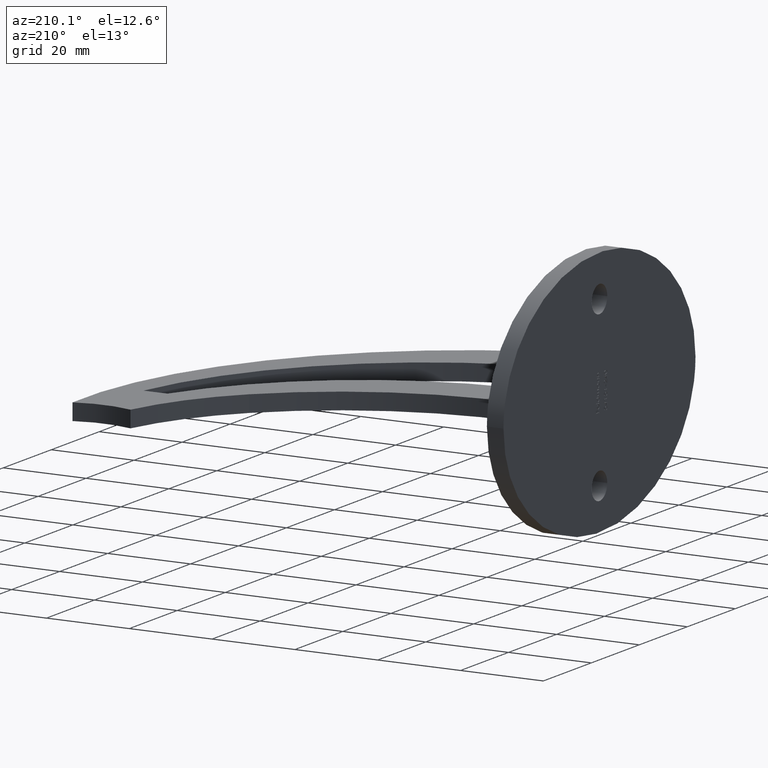
[diagram: clean part render]
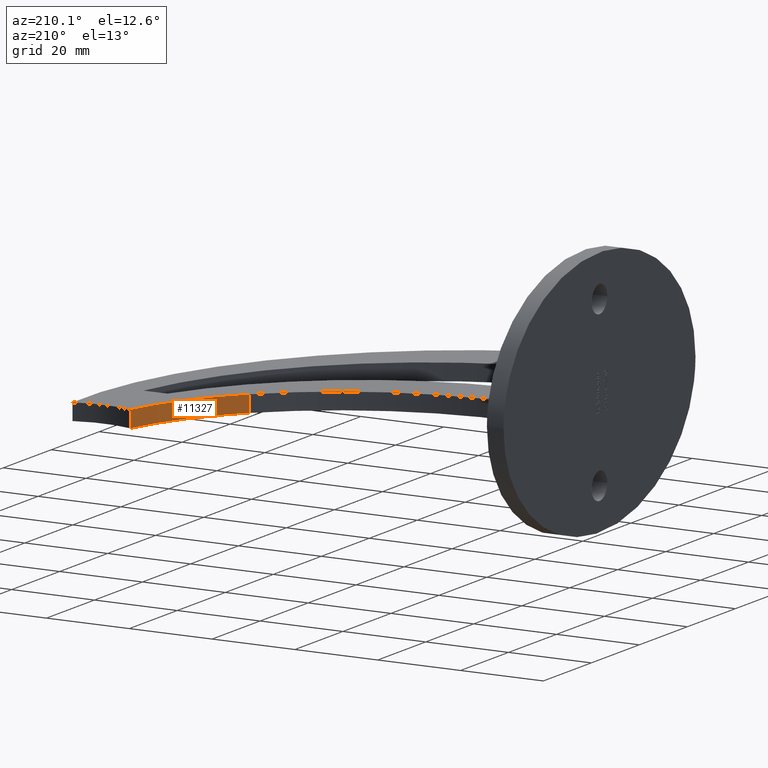
[diagram: same view with one face highlighted and labeled with its STEP entity id]
A machine part, auxiliary view. The second image highlights one B-rep face of the part: STEP entity #11327.
In plain terms, the highlighted cylindrical surface (partial cylindrical patch) has radius 55 mm, axis along (-0, -0, -1).
Its self-contained STEP definition (entity closure, byte-faithful):
#221 = CIRCLE ( 'NONE', #11270, 55.00000000000000711 ) ;
#243 = DIRECTION ( 'NONE',  ( 1.000000000000000000, 0.000000000000000000, 0.000000000000000000 ) ) ;
#434 = VERTEX_POINT ( 'NONE', #11503 ) ;
#796 = EDGE_LOOP ( 'NONE', ( #10430, #8026, #6751, #10864 ) ) ;
#1247 = EDGE_CURVE ( 'NONE', #434, #7793, #8801, .T. ) ;
#1521 = DIRECTION ( 'NONE',  ( -0.000000000000000000, 0.000000000000000000, 1.000000000000000000 ) ) ;
#1708 = DIRECTION ( 'NONE',  ( -0.000000000000000000, -0.000000000000000000, -1.000000000000000000 ) ) ;
#2078 = DIRECTION ( 'NONE',  ( -1.000000000000000000, 0.000000000000000000, 0.000000000000000000 ) ) ;
#2128 = EDGE_CURVE ( 'NONE', #5747, #11401, #11247, .T. ) ;
#2933 = EDGE_CURVE ( 'NONE', #7793, #11401, #221, .T. ) ;
#3272 = DIRECTION ( 'NONE',  ( 1.000000000000000000, 0.000000000000000000, 0.000000000000000000 ) ) ;
#3315 = CARTESIAN_POINT ( 'NONE',  ( 14.61404249810564338, 84.41547426875771976, 2.000000000000000000 ) ) ;
#3796 = DIRECTION ( 'NONE',  ( -0.000000000000000000, -0.000000000000000000, -1.000000000000000000 ) ) ;
#4097 = AXIS2_PLACEMENT_3D ( 'NONE', #3315, #1521, #3272 ) ;
#4722 = VECTOR ( 'NONE', #1708, 1000.000000000000000 ) ;
#4743 = CARTESIAN_POINT ( 'NONE',  ( 68.00000000000000000, 71.18900302333739205, 2.000000000000000000 ) ) ;
#5457 = AXIS2_PLACEMENT_3D ( 'NONE', #9168, #3796, #2078 ) ;
#5747 = VERTEX_POINT ( 'NONE', #7025 ) ;
#6751 = ORIENTED_EDGE ( 'NONE', *, *, #11439, .T. ) ;
#6773 = CIRCLE ( 'NONE', #4097, 55.00000000000000711 ) ;
#6910 = FACE_OUTER_BOUND ( 'NONE', #796, .T. ) ;
#7025 = CARTESIAN_POINT ( 'NONE',  ( 68.00000000000000000, 71.18900302333739205, 2.000000000000000000 ) ) ;
#7793 = VERTEX_POINT ( 'NONE', #11068 ) ;
#8026 = ORIENTED_EDGE ( 'NONE', *, *, #1247, .F. ) ;
#8576 = CARTESIAN_POINT ( 'NONE',  ( 68.00000000000000000, 71.18900302333739205, -2.000000000000000000 ) ) ;
#8801 = LINE ( 'NONE', #10406, #4722 ) ;
#8825 = VECTOR ( 'NONE', #9172, 1000.000000000000000 ) ;
#9168 = CARTESIAN_POINT ( 'NONE',  ( 14.61404249810564338, 84.41547426875771976, 2.000000000000000000 ) ) ;
#9172 = DIRECTION ( 'NONE',  ( -0.000000000000000000, -0.000000000000000000, -1.000000000000000000 ) ) ;
#10406 = CARTESIAN_POINT ( 'NONE',  ( 53.97457268643530881, 45.99999999999996447, 2.000000000000000000 ) ) ;
#10430 = ORIENTED_EDGE ( 'NONE', *, *, #2933, .F. ) ;
#10864 = ORIENTED_EDGE ( 'NONE', *, *, #2128, .T. ) ;
#10903 = CYLINDRICAL_SURFACE ( 'NONE', #5457, 55.00000000000000711 ) ;
#10979 = DIRECTION ( 'NONE',  ( -0.000000000000000000, 0.000000000000000000, 1.000000000000000000 ) ) ;
#11068 = CARTESIAN_POINT ( 'NONE',  ( 53.97457268643530881, 45.99999999999996447, -2.000000000000000000 ) ) ;
#11141 = CARTESIAN_POINT ( 'NONE',  ( 14.61404249810564338, 84.41547426875771976, -2.000000000000000000 ) ) ;
#11247 = LINE ( 'NONE', #4743, #8825 ) ;
#11270 = AXIS2_PLACEMENT_3D ( 'NONE', #11141, #10979, #243 ) ;
#11327 = ADVANCED_FACE ( 'NONE', ( #6910 ), #10903, .F. ) ;
#11401 = VERTEX_POINT ( 'NONE', #8576 ) ;
#11439 = EDGE_CURVE ( 'NONE', #434, #5747, #6773, .T. ) ;
#11503 = CARTESIAN_POINT ( 'NONE',  ( 53.97457268643530881, 45.99999999999996447, 2.000000000000000000 ) ) ;